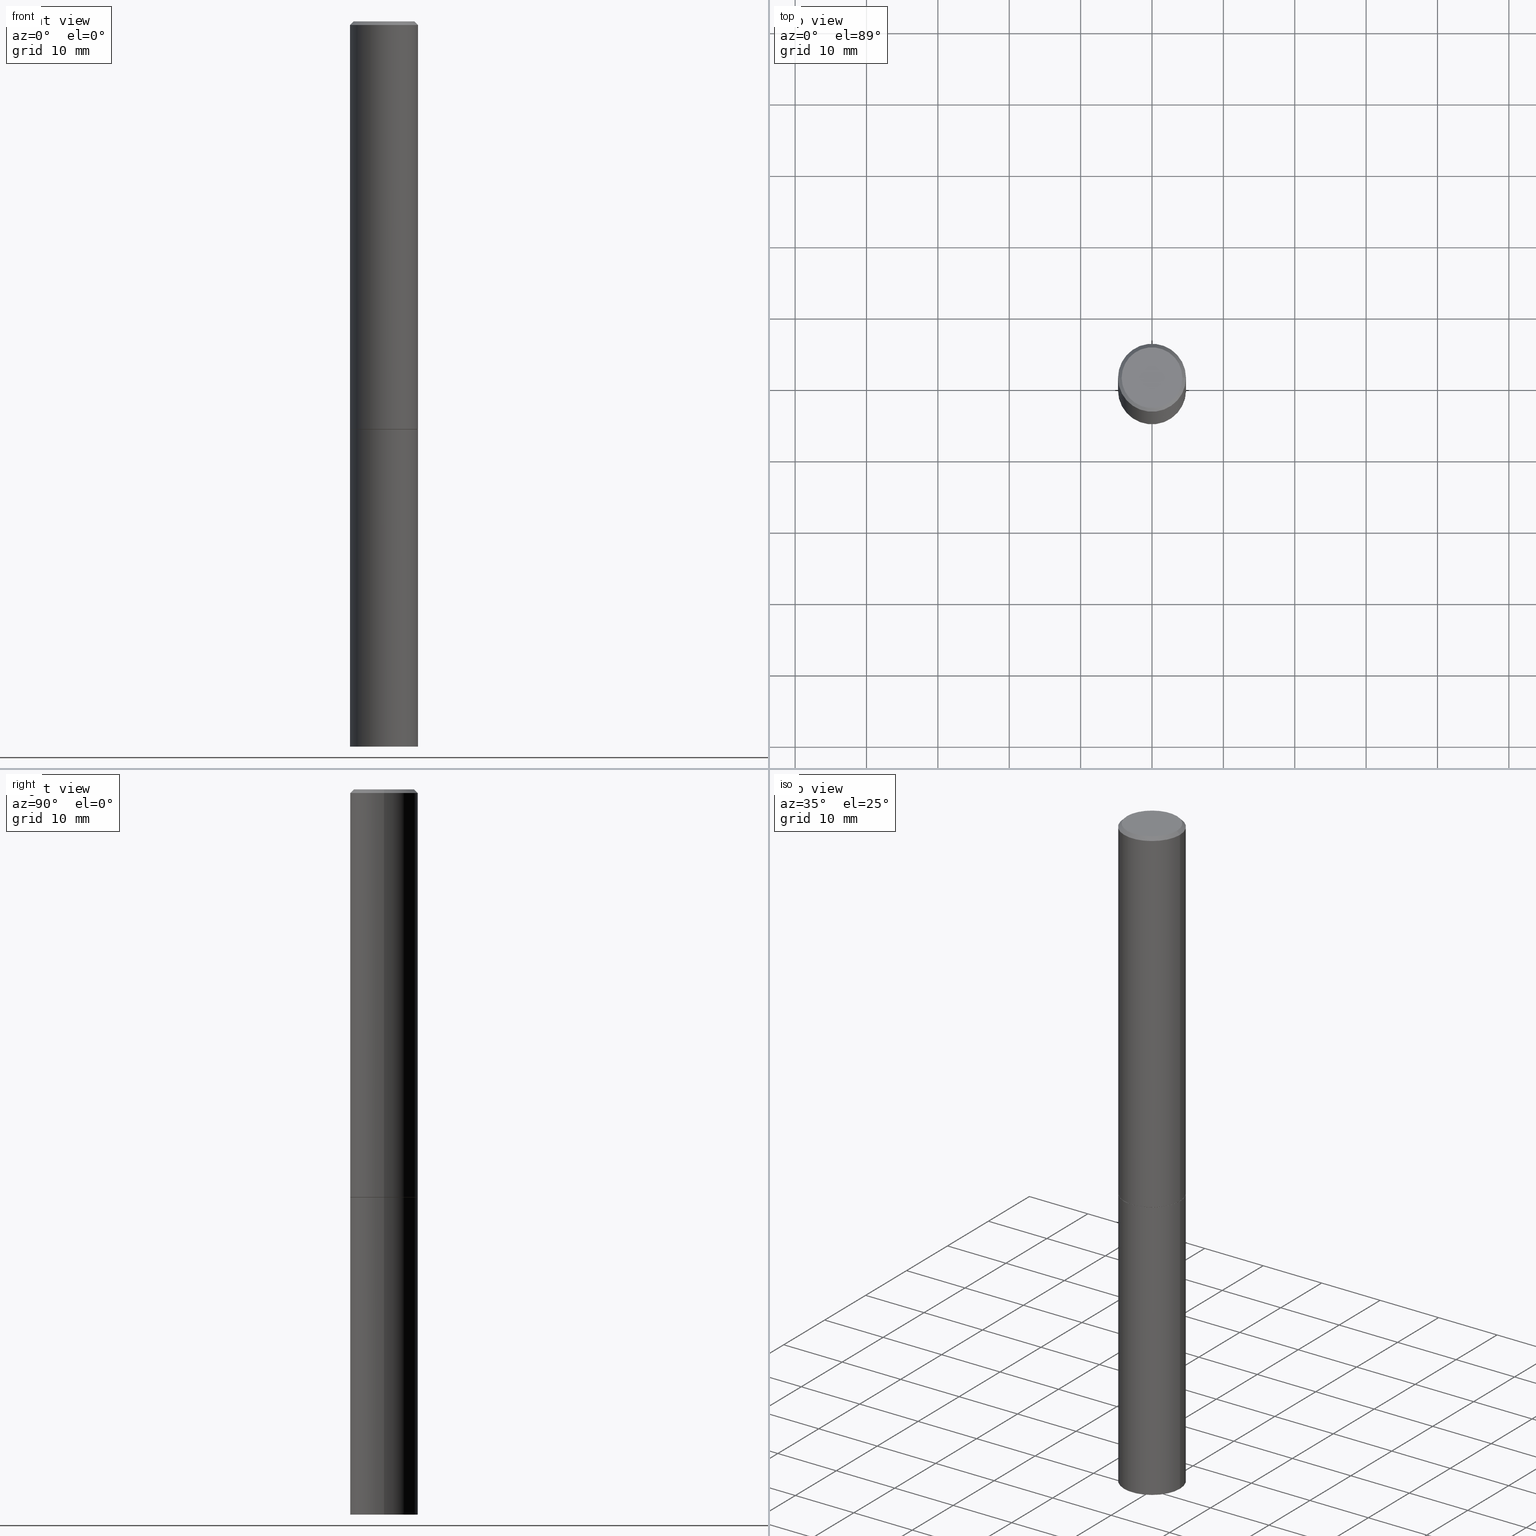
[diagram: canonical four-view strip — front | top / right | iso, engineering-drawing reading convention]
A machine part, canonical four-view strip (front | top / right | iso — engineering-drawing reading convention). The complete STEP part file that produces these views, byte-faithful:
ISO-10303-21;
HEADER;
FILE_DESCRIPTION (( 'STEP AP203' ),
    '1' );
FILE_NAME ('33127.STEP',
    '2023-03-21T20:39:41',
    ( '' ),
    ( '' ),
    'SwSTEP 2.0',
    'SolidWorks 2022',
    '' );
FILE_SCHEMA (( 'CONFIG_CONTROL_DESIGN' ));
ENDSEC;

DATA;
#1 = ORIENTED_EDGE ( 'NONE', *, *, #310, .F. ) ;
#2 = CARTESIAN_POINT ( 'NONE',  ( 0.1874999999999996947, -1.356173001359023297E-15, -0.02000000000000004552 ) ) ;
#3 = CYLINDRICAL_SURFACE ( 'NONE', #281, 0.1875000000000000278 ) ;
#4 = PRODUCT_DEFINITION ( 'UNKNOWN', '', #288, #286 ) ;
#5 = CARTESIAN_POINT ( 'NONE',  ( 9.756784211881482011E-29, -1.393313546251159810E-14, -3.990173541384430589 ) ) ;
#6 = APPROVAL_ROLE ( '' ) ;
#7 = CC_DESIGN_SECURITY_CLASSIFICATION ( #105, ( #288 ) ) ;
#8 = DIRECTION ( 'NONE',  ( -2.445468806185136597E-29, 3.491481338843145583E-15, 1.000000000000000000 ) ) ;
#9 = EDGE_CURVE ( 'NONE', #234, #339, #307, .T. ) ;
#10 = DIRECTION ( 'NONE',  ( -2.445468806185136597E-29, 3.491481338843145583E-15, 1.000000000000000000 ) ) ;
#11 = DIRECTION ( 'NONE',  ( -2.445468806185136597E-29, 3.491481338843145583E-15, 1.000000000000000000 ) ) ;
#12 = CALENDAR_DATE ( 2023, 21, 3 ) ;
#13 = PERSON_AND_ORGANIZATION_ROLE ( 'classification_officer' ) ;
#14 = APPROVAL_DATE_TIME ( #158, #206 ) ;
#15 = CC_DESIGN_PERSON_AND_ORGANIZATION_ASSIGNMENT ( #126, #96, ( #124 ) ) ;
#16 = EDGE_LOOP ( 'NONE', ( #106, #85, #162 ) ) ;
#17 = CONICAL_SURFACE ( 'NONE', #231, 751.2258538476485228, 1.518436449235072372 ) ;
#18 = ORIENTED_EDGE ( 'NONE', *, *, #337, .T. ) ;
#19 = ORIENTED_EDGE ( 'NONE', *, *, #65, .T. ) ;
#20 = ORIENTED_EDGE ( 'NONE', *, *, #265, .T. ) ;
#21 = VECTOR ( 'NONE', #212, 39.37007874015748143 ) ;
#22 = LENGTH_MEASURE_WITH_UNIT ( LENGTH_MEASURE( 0.02539999999999999897 ), #289 );
#23 = ORIENTED_EDGE ( 'NONE', *, *, #376, .F. ) ;
#24 = DIRECTION ( 'NONE',  ( -0.7071067811864388819, 7.493145998869961307E-15, 0.7071067811866561525 ) ) ;
#25 = DIRECTION ( 'NONE',  ( -2.445468806185136597E-29, 3.491481338843145583E-15, 1.000000000000000000 ) ) ;
#26 = EDGE_CURVE ( 'NONE', #339, #234, #36, .T. ) ;
#27 = CARTESIAN_POINT ( 'NONE',  ( 0.1874999999999998335, -1.309305502066173825E-15, 9.142831454617371204E-30 ) ) ;
#28 = AXIS2_PLACEMENT_3D ( 'NONE', #298, #319, #111 ) ;
#29 = ORIENTED_EDGE ( 'NONE', *, *, #279, .T. ) ;
#30 = DIRECTION ( 'NONE',  ( 1.000000000000000000, -6.982962677686265922E-15, 4.876176775795935793E-29 ) ) ;
#31 = CARTESIAN_POINT ( 'NONE',  ( 5.502304813916557343E-29, -7.855833012397078448E-15, -2.250000000000000000 ) ) ;
#32 = PLANE ( 'NONE',  #185 ) ;
#33 = DIRECTION ( 'NONE',  ( 1.000000000000000000, -6.982962677686266711E-15, 4.876176775795936353E-29 ) ) ;
#34 = PLANE ( 'NONE',  #72 ) ;
#35 = PERSON_AND_ORGANIZATION ( #365, #60 ) ;
#36 = CIRCLE ( 'NONE', #301, 0.1875000000000000278 ) ;
#37 = AXIS2_PLACEMENT_3D ( 'NONE', #299, #99, #33 ) ;
#38 = DIRECTION ( 'NONE',  ( -0.9986295347545742773, 6.790662755453662155E-15, -0.05233595624293820026 ) ) ;
#39 = CARTESIAN_POINT ( 'NONE',  ( -0.1864999999999999714, -6.525372355856269206E-15, -2.250000000000000444 ) ) ;
#40 = SECURITY_CLASSIFICATION_LEVEL ( 'unclassified' ) ;
#41 = CALENDAR_DATE ( 2023, 21, 3 ) ;
#42 = AXIS2_PLACEMENT_3D ( 'NONE', #243, #223, #332 ) ;
#43 = DATE_TIME_ROLE ( 'creation_date' ) ;
#44 = CARTESIAN_POINT ( 'NONE',  ( 9.781875224740546387E-29, -1.396592535537258233E-14, -4.000000000000000000 ) ) ;
#45 = CIRCLE ( 'NONE', #256, 0.1674999999999997047 ) ;
#46 = AXIS2_PLACEMENT_3D ( 'NONE', #64, #361, #250 ) ;
#47 = VERTEX_POINT ( 'NONE', #144 ) ;
#48 = EDGE_CURVE ( 'NONE', #139, #322, #113, .T. ) ;
#49 = LINE ( 'NONE', #172, #225 ) ;
#50 = DIRECTION ( 'NONE',  ( 1.000000000000000000, -6.982962677686265922E-15, 4.876176775795935793E-29 ) ) ;
#51 = VECTOR ( 'NONE', #267, 39.37007874015748143 ) ;
#52 = VERTEX_POINT ( 'NONE', #357 ) ;
#53 = CARTESIAN_POINT ( 'NONE',  ( -0.1864999999999999714, -6.530670810204491608E-15, -2.250000000000000444 ) ) ;
#54 = EDGE_CURVE ( 'NONE', #166, #169, #326, .T. ) ;
#55 = DIRECTION ( 'NONE',  ( -2.445468806185136597E-29, 3.491481338843145583E-15, 1.000000000000000000 ) ) ;
#56 = FACE_OUTER_BOUND ( 'NONE', #141, .T. ) ;
#57 = ORIENTED_EDGE ( 'NONE', *, *, #389, .F. ) ;
#58 = UNCERTAINTY_MEASURE_WITH_UNIT (LENGTH_MEASURE( 1.000000000000000082E-05 ), #238, 'distance_accuracy_value', 'NONE');
#59 = LINE ( 'NONE', #27, #21 ) ;
#60 = ORGANIZATION ( 'UNSPECIFIED', 'UNSPECIFIED', '' ) ;
#61 = DIRECTION ( 'NONE',  ( -2.445468806185136597E-29, 3.491481338843145583E-15, 1.000000000000000000 ) ) ;
#62 = EDGE_CURVE ( 'NONE', #374, #322, #68, .T. ) ;
#63 = DIRECTION ( 'NONE',  ( -2.445468806185136877E-29, 3.491481338843145188E-15, 1.000000000000000000 ) ) ;
#64 = CARTESIAN_POINT ( 'NONE',  ( 4.890937612370284544E-31, -6.982962677686307633E-17, -0.02000000000000004552 ) ) ;
#65 = EDGE_CURVE ( 'NONE', #170, #47, #165, .T. ) ;
#66 = CARTESIAN_POINT ( 'NONE',  ( 1.169646248512447623E-15, 0.1674999999999997047, -5.848231242562258822E-16 ) ) ;
#67 = CALENDAR_DATE ( 2023, 21, 3 ) ;
#68 = LINE ( 'NONE', #230, #334 ) ;
#69 = CARTESIAN_POINT ( 'NONE',  ( 0.000000000000000000, 0.000000000000000000, 0.000000000000000000 ) ) ;
#70 = PERSON_AND_ORGANIZATION ( #365, #60 ) ;
#71 = AXIS2_PLACEMENT_3D ( 'NONE', #325, #61, #94 ) ;
#72 = AXIS2_PLACEMENT_3D ( 'NONE', #66, #189, #300 ) ;
#73 = CARTESIAN_POINT ( 'NONE',  ( 0.1864999999999999714, -9.158155551785567442E-15, -2.250000000000000444 ) ) ;
#74 = APPROVAL_STATUS ( 'not_yet_approved' ) ;
#75 = DATE_TIME_ROLE ( 'classification_date' ) ;
#76 = EDGE_CURVE ( 'NONE', #166, #317, #49, .T. ) ;
#77 = ORIENTED_EDGE ( 'NONE', *, *, #310, .T. ) ;
#78 = AXIS2_PLACEMENT_3D ( 'NONE', #204, #148, #268 ) ;
#79 = EDGE_LOOP ( 'NONE', ( #341, #210 ) ) ;
#80 = ORIENTED_EDGE ( 'NONE', *, *, #62, .T. ) ;
#81 = EDGE_CURVE ( 'NONE', #201, #374, #45, .T. ) ;
#82 = ORIENTED_EDGE ( 'NONE', *, *, #380, .F. ) ;
#83 = DIRECTION ( 'NONE',  ( -2.445468806185136597E-29, 3.491481338843145583E-15, 1.000000000000000000 ) ) ;
#84 = ORIENTED_EDGE ( 'NONE', *, *, #101, .F. ) ;
#85 = ORIENTED_EDGE ( 'NONE', *, *, #174, .T. ) ;
#86 = CARTESIAN_POINT ( 'NONE',  ( 5.502304813916558464E-29, -7.855833012397078448E-15, -2.250000000000000444 ) ) ;
#87 = CIRCLE ( 'NONE', #302, 0.1875000000000000278 ) ;
#88 = EDGE_LOOP ( 'NONE', ( #348, #77, #164, #207 ) ) ;
#89 = LINE ( 'NONE', #53, #131 ) ;
#90 = CARTESIAN_POINT ( 'NONE',  ( -0.1875000000000000278, -9.578611554334641752E-15, -2.250000000000000000 ) ) ;
#91 = DIRECTION ( 'NONE',  ( -2.445468806185136597E-29, 3.491481338843145583E-15, 1.000000000000000000 ) ) ;
#92 = CARTESIAN_POINT ( 'NONE',  ( -1.519004022092693237E-18, -1.393161645848940829E-14, -3.990173541384430589 ) ) ;
#93 = ADVANCED_FACE ( 'NONE', ( #293 ), #146, .T. ) ;
#94 = DIRECTION ( 'NONE',  ( 1.000000000000000000, -6.982962677686269077E-15, 0.000000000000000000 ) ) ;
#95 = DIRECTION ( 'NONE',  ( -1.000000000000000000, 6.982962677686266711E-15, 0.000000000000000000 ) ) ;
#96 = PERSON_AND_ORGANIZATION_ROLE ( 'design_owner' ) ;
#97 = FACE_OUTER_BOUND ( 'NONE', #186, .T. ) ;
#98 = DATE_AND_TIME ( #132, #108 ) ;
#99 = DIRECTION ( 'NONE',  ( -2.445468806185136597E-29, 3.491481338843145583E-15, 1.000000000000000000 ) ) ;
#100 = APPROVAL_STATUS ( 'not_yet_approved' ) ;
#101 = EDGE_CURVE ( 'NONE', #169, #166, #311, .T. ) ;
#102 = COORDINATED_UNIVERSAL_TIME_OFFSET ( 5, 0, .BEHIND. ) ;
#103 = PRODUCT_RELATED_PRODUCT_CATEGORY ( 'detail', '', ( #124 ) ) ;
#104 = ORIENTED_EDGE ( 'NONE', *, *, #150, .T. ) ;
#105 = SECURITY_CLASSIFICATION ( '', '', #40 ) ;
#106 = ORIENTED_EDGE ( 'NONE', *, *, #150, .F. ) ;
#107 = ORIENTED_EDGE ( 'NONE', *, *, #62, .F. ) ;
#108 = LOCAL_TIME ( 16, 39, 41.00000000000000000, #102 ) ;
#109 = DIRECTION ( 'NONE',  ( 0.7071067811864388819, -2.468850131081119129E-15, 0.7071067811866561525 ) ) ;
#110 = ORIENTED_EDGE ( 'NONE', *, *, #138, .T. ) ;
#111 = DIRECTION ( 'NONE',  ( 1.000000000000000000, -6.982962677686261189E-15, 0.000000000000000000 ) ) ;
#112 = AXIS2_PLACEMENT_3D ( 'NONE', #86, #381, #50 ) ;
#113 = LINE ( 'NONE', #269, #130 ) ;
#114 = CARTESIAN_POINT ( 'NONE',  ( 0.000000000000000000, 0.000000000000000000, 0.000000000000000000 ) ) ;
#115 = ORIENTED_EDGE ( 'NONE', *, *, #198, .F. ) ;
#116 = CYLINDRICAL_SURFACE ( 'NONE', #137, 0.1875000000000000278 ) ;
#117 = CARTESIAN_POINT ( 'NONE',  ( 0.000000000000000000, 0.000000000000000000, 0.000000000000000000 ) ) ;
#118 = FACE_OUTER_BOUND ( 'NONE', #375, .T. ) ;
#119 = APPROVAL_PERSON_ORGANIZATION ( #161, #252, #362 ) ;
#120 = COORDINATED_UNIVERSAL_TIME_OFFSET ( 5, 0, .BEHIND. ) ;
#121 = DIRECTION ( 'NONE',  ( 0.9986295347545742773, -7.033825938272001856E-15, -0.05233595624293820026 ) ) ;
#122 = PERSON_AND_ORGANIZATION_ROLE ( 'creator' ) ;
#123 = CC_DESIGN_DATE_AND_TIME_ASSIGNMENT ( #98, #75, ( #105 ) ) ;
#124 = PRODUCT ( '33127', '33127', '', ( #199 ) ) ;
#125 = DIRECTION ( 'NONE',  ( 1.000000000000000000, -6.982962677686266711E-15, 0.000000000000000000 ) ) ;
#126 = PERSON_AND_ORGANIZATION ( #365, #60 ) ;
#127 = APPLICATION_CONTEXT ( 'configuration controlled 3d designs of mechanical parts and assemblies' ) ;
#128 = CARTESIAN_POINT ( 'NONE',  ( 0.1674999999999997047, -1.252653207992876316E-15, 8.469775550109225372E-30 ) ) ;
#129 = PERSON_AND_ORGANIZATION ( #365, #60 ) ;
#130 = VECTOR ( 'NONE', #241, 39.37007874015748143 ) ;
#131 = VECTOR ( 'NONE', #24, 39.37007874015748143 ) ;
#132 = CALENDAR_DATE ( 2023, 21, 3 ) ;
#133 = ADVANCED_FACE ( 'NONE', ( #153 ), #274, .T. ) ;
#134 = ORIENTED_EDGE ( 'NONE', *, *, #279, .F. ) ;
#135 = EDGE_LOOP ( 'NONE', ( #82, #291, #346, #216 ) ) ;
#136 = ORIENTED_EDGE ( 'NONE', *, *, #211, .T. ) ;
#137 = AXIS2_PLACEMENT_3D ( 'NONE', #117, #184, #242 ) ;
#138 = EDGE_CURVE ( 'NONE', #317, #139, #159, .T. ) ;
#139 = VERTEX_POINT ( 'NONE', #192 ) ;
#140 = CARTESIAN_POINT ( 'NONE',  ( 5.502304813916558464E-29, -7.855833012397078448E-15, -2.250000000000000444 ) ) ;
#141 = EDGE_LOOP ( 'NONE', ( #134, #254, #80, #20 ) ) ;
#142 = CARTESIAN_POINT ( 'NONE',  ( -0.1874999999999996947, 1.239475875289309738E-15, -0.02000000000000004552 ) ) ;
#143 = DIRECTION ( 'NONE',  ( 1.000000000000000000, -6.982962677686269077E-15, 0.000000000000000000 ) ) ;
#144 = CARTESIAN_POINT ( 'NONE',  ( -0.1874999999999996947, -1.265661985330641048E-14, -4.000000000000000000 ) ) ;
#145 = CARTESIAN_POINT ( 'NONE',  ( 0.1875000000000000278, -9.161647033124408872E-15, -2.249000000000000110 ) ) ;
#146 = CONICAL_SURFACE ( 'NONE', #368, 0.1864999999999999714, 0.7853981633972946241 ) ;
#147 = VECTOR ( 'NONE', #121, 39.37007874015748854 ) ;
#148 = DIRECTION ( 'NONE',  ( 0.000000000000000000, 0.000000000000000000, 1.000000000000000000 ) ) ;
#149 = EDGE_LOOP ( 'NONE', ( #1, #355, #257, #213 ) ) ;
#150 = EDGE_CURVE ( 'NONE', #237, #170, #370, .T. ) ;
#151 = DIRECTION ( 'NONE',  ( 2.438088387897960049E-29, -3.491481338843145188E-15, -1.000000000000000000 ) ) ;
#152 = DIRECTION ( 'NONE',  ( 1.000000000000000000, -6.982962677686261189E-15, 0.000000000000000000 ) ) ;
#153 = FACE_OUTER_BOUND ( 'NONE', #350, .T. ) ;
#154 = CC_DESIGN_PERSON_AND_ORGANIZATION_ASSIGNMENT ( #277, #367, ( #288 ) ) ;
#155 = CARTESIAN_POINT ( 'NONE',  ( 4.890937612370284544E-31, -6.982962677686307633E-17, -0.02000000000000004552 ) ) ;
#156 = FACE_OUTER_BOUND ( 'NONE', #264, .T. ) ;
#157 = CARTESIAN_POINT ( 'NONE',  ( 1.519004022287850030E-18, -1.393161645848940829E-14, -3.990173541384430589 ) ) ;
#158 = DATE_AND_TIME ( #41, #340 ) ;
#159 = CIRCLE ( 'NONE', #42, 0.1875000000000000278 ) ;
#160 = AXIS2_PLACEMENT_3D ( 'NONE', #155, #91, #390 ) ;
#161 = PERSON_AND_ORGANIZATION ( #365, #60 ) ;
#162 = ORIENTED_EDGE ( 'NONE', *, *, #65, .F. ) ;
#163 = ADVANCED_BREP_SHAPE_REPRESENTATION ( '33127', ( #306, #168, #78 ), #200 ) ;
#164 = ORIENTED_EDGE ( 'NONE', *, *, #138, .F. ) ;
#165 = CIRCLE ( 'NONE', #385, 0.1875000000000000278 ) ;
#166 = VERTEX_POINT ( 'NONE', #73 ) ;
#167 = AXIS2_PLACEMENT_3D ( 'NONE', #278, #11, #220 ) ;
#168 = MANIFOLD_SOLID_BREP ( 'Body-Move/Copy2[2]', #280 ) ;
#169 = VERTEX_POINT ( 'NONE', #39 ) ;
#170 = VERTEX_POINT ( 'NONE', #303 ) ;
#171 = DIMENSIONAL_EXPONENTS ( 1.000000000000000000, 0.000000000000000000, 0.000000000000000000, 0.000000000000000000, 0.000000000000000000, 0.000000000000000000, 0.000000000000000000 ) ;
#172 = CARTESIAN_POINT ( 'NONE',  ( 0.1864999999999999714, -9.158155551785567442E-15, -2.250000000000000444 ) ) ;
#173 = ORIENTED_EDGE ( 'NONE', *, *, #347, .T. ) ;
#174 = EDGE_CURVE ( 'NONE', #237, #47, #359, .T. ) ;
#175 = CONICAL_SURFACE ( 'NONE', #351, 751.2258538476485228, 1.518436449235072372 ) ;
#176 = LINE ( 'NONE', #384, #386 ) ;
#177 = DIRECTION ( 'NONE',  ( 1.000000000000000000, -6.982962677686266711E-15, 4.876176775795936353E-29 ) ) ;
#178 = ORIENTED_EDGE ( 'NONE', *, *, #54, .F. ) ;
#179 = DIRECTION ( 'NONE',  ( -2.445468806185136877E-29, 3.491481338843145188E-15, 1.000000000000000000 ) ) ;
#180 = DIRECTION ( 'NONE',  ( 1.000000000000000000, -6.982962677686266711E-15, 0.000000000000000000 ) ) ;
#181 = PLANE ( 'NONE',  #112 ) ;
#182 = ADVANCED_FACE ( 'NONE', ( #97 ), #308, .T. ) ;
#183 = ORIENTED_EDGE ( 'NONE', *, *, #198, .T. ) ;
#184 = DIRECTION ( 'NONE',  ( -2.445468806185136597E-29, 3.491481338843145583E-15, 1.000000000000000000 ) ) ;
#185 = AXIS2_PLACEMENT_3D ( 'NONE', #358, #151, #214 ) ;
#186 = EDGE_LOOP ( 'NONE', ( #343, #29, #183, #107 ) ) ;
#187 = FACE_OUTER_BOUND ( 'NONE', #16, .T. ) ;
#188 = CC_DESIGN_PERSON_AND_ORGANIZATION_ASSIGNMENT ( #129, #13, ( #105 ) ) ;
#189 = DIRECTION ( 'NONE',  ( 2.438088387897960049E-29, -3.491481338843145188E-15, -1.000000000000000000 ) ) ;
#190 = PERSON_AND_ORGANIZATION ( #365, #60 ) ;
#191 = ADVANCED_FACE ( 'NONE', ( #363 ), #245, .T. ) ;
#192 = CARTESIAN_POINT ( 'NONE',  ( -0.1875000000000000278, -2.628817949367357182E-15, -2.249000000000000110 ) ) ;
#193 = APPROVAL_PERSON_ORGANIZATION ( #35, #206, #6 ) ;
#194 = DATE_AND_TIME ( #67, #226 ) ;
#195 = CARTESIAN_POINT ( 'NONE',  ( 1.060361443828286535E-27, -1.513915116885344951E-13, -43.36025228154191069 ) ) ;
#196 = APPROVAL_DATE_TIME ( #224, #314 ) ;
#197 = ADVANCED_FACE ( 'NONE', ( #156 ), #175, .F. ) ;
#198 = EDGE_CURVE ( 'NONE', #52, #322, #205, .T. ) ;
#199 = MECHANICAL_CONTEXT ( 'NONE', #208, 'mechanical' ) ;
#200 =( GEOMETRIC_REPRESENTATION_CONTEXT ( 3 ) GLOBAL_UNCERTAINTY_ASSIGNED_CONTEXT ( ( #58 ) ) GLOBAL_UNIT_ASSIGNED_CONTEXT ( ( #238, #354, #320 ) ) REPRESENTATION_CONTEXT ( 'NONE', 'WORKASPACE' ) );
#201 = VERTEX_POINT ( 'NONE', #128 ) ;
#202 = DIRECTION ( 'NONE',  ( -0.7071067811865465735, 2.468850131082246805E-15, -0.7071067811865484609 ) ) ;
#203 = ADVANCED_FACE ( 'NONE', ( #187 ), #17, .F. ) ;
#204 = CARTESIAN_POINT ( 'NONE',  ( 0.000000000000000000, 0.000000000000000000, 0.000000000000000000 ) ) ;
#205 = CIRCLE ( 'NONE', #296, 0.1874999999999996947 ) ;
#206 = APPROVAL ( #251, 'UNSPECIFIED' ) ;
#207 = ORIENTED_EDGE ( 'NONE', *, *, #76, .F. ) ;
#208 = APPLICATION_CONTEXT ( 'configuration controlled 3d designs of mechanical parts and assemblies' ) ;
#209 = DIRECTION ( 'NONE',  ( 1.000000000000000000, -6.982962677686261189E-15, 0.000000000000000000 ) ) ;
#210 = ORIENTED_EDGE ( 'NONE', *, *, #26, .T. ) ;
#211 = EDGE_CURVE ( 'NONE', #374, #201, #353, .T. ) ;
#212 = DIRECTION ( 'NONE',  ( -2.445468806185136877E-29, 3.491481338843145188E-15, 1.000000000000000000 ) ) ;
#213 = ORIENTED_EDGE ( 'NONE', *, *, #347, .F. ) ;
#214 = DIRECTION ( 'NONE',  ( -1.000000000000000000, 6.982962677686265922E-15, -4.876176775795935793E-29 ) ) ;
#215 = LINE ( 'NONE', #2, #51 ) ;
#216 = ORIENTED_EDGE ( 'NONE', *, *, #26, .F. ) ;
#217 = DIRECTION ( 'NONE',  ( -2.445468806185136597E-29, 3.491481338843145583E-15, 1.000000000000000000 ) ) ;
#218 = AXIS2_PLACEMENT_3D ( 'NONE', #31, #55, #262 ) ;
#219 = AXIS2_PLACEMENT_3D ( 'NONE', #356, #260, #297 ) ;
#220 = DIRECTION ( 'NONE',  ( 1.000000000000000000, -6.982962677686266711E-15, 4.876176775795935793E-29 ) ) ;
#221 = DIRECTION ( 'NONE',  ( 1.000000000000000000, -6.982962677686266711E-15, 4.876176775795935793E-29 ) ) ;
#222 = COORDINATED_UNIVERSAL_TIME_OFFSET ( 5, 0, .BEHIND. ) ;
#223 = DIRECTION ( 'NONE',  ( -2.445468806185136597E-29, 3.491481338843145583E-15, 1.000000000000000000 ) ) ;
#224 = DATE_AND_TIME ( #275, #336 ) ;
#225 = VECTOR ( 'NONE', #109, 39.37007874015748143 ) ;
#226 = LOCAL_TIME ( 16, 39, 41.00000000000000000, #333 ) ;
#227 = FACE_OUTER_BOUND ( 'NONE', #88, .T. ) ;
#228 = PERSON_AND_ORGANIZATION_ROLE ( 'design_supplier' ) ;
#229 = ADVANCED_FACE ( 'NONE', ( #227 ), #253, .T. ) ;
#230 = CARTESIAN_POINT ( 'NONE',  ( -0.1874999999999996947, 1.239475875289309738E-15, -0.02000000000000004552 ) ) ;
#231 = AXIS2_PLACEMENT_3D ( 'NONE', #248, #366, #95 ) ;
#232 = CC_DESIGN_DATE_AND_TIME_ASSIGNMENT ( #305, #43, ( #4 ) ) ;
#233 = EDGE_LOOP ( 'NONE', ( #110, #287, #115, #342 ) ) ;
#234 = VERTEX_POINT ( 'NONE', #246 ) ;
#235 = ORIENTED_EDGE ( 'NONE', *, *, #380, .T. ) ;
#236 = ORIENTED_EDGE ( 'NONE', *, *, #48, .F. ) ;
#237 = VERTEX_POINT ( 'NONE', #5 ) ;
#238 =( CONVERSION_BASED_UNIT ( 'INCH', #22 ) LENGTH_UNIT ( ) NAMED_UNIT ( #171 ) );
#239 = DIRECTION ( 'NONE',  ( 1.000000000000000000, -6.982962677686269077E-15, 0.000000000000000000 ) ) ;
#240 = LINE ( 'NONE', #323, #312 ) ;
#241 = DIRECTION ( 'NONE',  ( -2.445468806185136877E-29, 3.491481338843145188E-15, 1.000000000000000000 ) ) ;
#242 = DIRECTION ( 'NONE',  ( 1.000000000000000000, -6.982962677686265922E-15, 4.876176775795935793E-29 ) ) ;
#243 = CARTESIAN_POINT ( 'NONE',  ( 5.499859345110371740E-29, -7.852341531058233864E-15, -2.249000000000000110 ) ) ;
#244 = CC_DESIGN_APPROVAL ( #314, ( #4 ) ) ;
#245 = CYLINDRICAL_SURFACE ( 'NONE', #167, 0.1874999999999998335 ) ;
#246 = CARTESIAN_POINT ( 'NONE',  ( 0.1875000000000000278, -9.165138514463253457E-15, -2.250000000000000000 ) ) ;
#247 = COORDINATED_UNIVERSAL_TIME_OFFSET ( 5, 0, .BEHIND. ) ;
#248 = CARTESIAN_POINT ( 'NONE',  ( 1.060361443828286535E-27, -1.513915116885344951E-13, -43.36025228154191069 ) ) ;
#249 = APPROVAL_DATE_TIME ( #194, #252 ) ;
#250 = DIRECTION ( 'NONE',  ( -1.000000000000000000, 6.982962677686266711E-15, 0.000000000000000000 ) ) ;
#251 = APPROVAL_STATUS ( 'not_yet_approved' ) ;
#252 = APPROVAL ( #100, 'UNSPECIFIED' ) ;
#253 = CONICAL_SURFACE ( 'NONE', #266, 0.1864999999999999714, 0.7853981633972946241 ) ;
#254 = ORIENTED_EDGE ( 'NONE', *, *, #211, .F. ) ;
#255 = ORIENTED_EDGE ( 'NONE', *, *, #174, .F. ) ;
#256 = AXIS2_PLACEMENT_3D ( 'NONE', #349, #316, #177 ) ;
#257 = ORIENTED_EDGE ( 'NONE', *, *, #76, .T. ) ;
#258 = CIRCLE ( 'NONE', #160, 0.1874999999999996947 ) ;
#259 = EDGE_LOOP ( 'NONE', ( #19, #235, #379, #23 ) ) ;
#260 = DIRECTION ( 'NONE',  ( 2.445468806185136597E-29, -3.491481338843145583E-15, -1.000000000000000000 ) ) ;
#261 = ADVANCED_FACE ( 'NONE', ( #118 ), #34, .F. ) ;
#262 = DIRECTION ( 'NONE',  ( 1.000000000000000000, -6.982962677686266711E-15, 0.000000000000000000 ) ) ;
#263 = CARTESIAN_POINT ( 'NONE',  ( -0.1674999999999997047, 1.204561061900878878E-15, -8.301862719484099178E-30 ) ) ;
#264 = EDGE_LOOP ( 'NONE', ( #255, #104, #57 ) ) ;
#265 = EDGE_CURVE ( 'NONE', #322, #52, #258, .T. ) ;
#266 = AXIS2_PLACEMENT_3D ( 'NONE', #330, #338, #272 ) ;
#267 = DIRECTION ( 'NONE',  ( 0.7071067811865465735, -7.319954787623252890E-15, -0.7071067811865484609 ) ) ;
#268 = DIRECTION ( 'NONE',  ( 1.000000000000000000, 0.000000000000000000, 0.000000000000000000 ) ) ;
#269 = CARTESIAN_POINT ( 'NONE',  ( -0.1874999999999998335, 1.332267629550186665E-15, -9.223003294227939583E-30 ) ) ;
#270 = ADVANCED_FACE ( 'NONE', ( #56 ), #378, .T. ) ;
#271 = FACE_OUTER_BOUND ( 'NONE', #135, .T. ) ;
#272 = DIRECTION ( 'NONE',  ( 1.000000000000000000, -6.982962677686269077E-15, 0.000000000000000000 ) ) ;
#273 = LOCAL_TIME ( 16, 39, 41.00000000000000000, #247 ) ;
#274 = CYLINDRICAL_SURFACE ( 'NONE', #377, 0.1874999999999998335 ) ;
#275 = CALENDAR_DATE ( 2023, 21, 3 ) ;
#276 = CARTESIAN_POINT ( 'NONE',  ( 4.890937612370284544E-31, -6.982962677686307633E-17, -0.02000000000000004552 ) ) ;
#277 = PERSON_AND_ORGANIZATION ( #365, #60 ) ;
#278 = CARTESIAN_POINT ( 'NONE',  ( 0.000000000000000000, 0.000000000000000000, 0.000000000000000000 ) ) ;
#279 = EDGE_CURVE ( 'NONE', #201, #52, #215, .T. ) ;
#280 = CLOSED_SHELL ( 'NONE', ( #229, #191, #182, #270, #133, #93, #318, #261 ) ) ;
#281 = AXIS2_PLACEMENT_3D ( 'NONE', #114, #328, #30 ) ;
#282 = PERSON_AND_ORGANIZATION ( #365, #60 ) ;
#283 = CLOSED_SHELL ( 'NONE', ( #331, #197, #203, #344, #388 ) ) ;
#284 = SHAPE_DEFINITION_REPRESENTATION ( #335, #163 ) ;
#285 = APPROVAL_PERSON_ORGANIZATION ( #70, #314, #364 ) ;
#286 = DESIGN_CONTEXT ( 'detailed design', #127, 'design' ) ;
#287 = ORIENTED_EDGE ( 'NONE', *, *, #48, .T. ) ;
#288 = PRODUCT_DEFINITION_FORMATION_WITH_SPECIFIED_SOURCE ( 'ANY', '', #124, .NOT_KNOWN. ) ;
#289 =( LENGTH_UNIT ( ) NAMED_UNIT ( * ) SI_UNIT ( $, .METRE. ) );
#290 = CARTESIAN_POINT ( 'NONE',  ( 5.502304813916558464E-29, -7.855833012397078448E-15, -2.250000000000000444 ) ) ;
#291 = ORIENTED_EDGE ( 'NONE', *, *, #389, .T. ) ;
#292 = CARTESIAN_POINT ( 'NONE',  ( 9.781875224740546387E-29, -1.396592535537258233E-14, -4.000000000000000000 ) ) ;
#293 = FACE_OUTER_BOUND ( 'NONE', #149, .T. ) ;
#294 = FACE_OUTER_BOUND ( 'NONE', #259, .T. ) ;
#295 = AXIS2_PLACEMENT_3D ( 'NONE', #140, #25, #143 ) ;
#296 = AXIS2_PLACEMENT_3D ( 'NONE', #276, #10, #125 ) ;
#297 = DIRECTION ( 'NONE',  ( -1.000000000000000000, 6.982962677686266711E-15, 0.000000000000000000 ) ) ;
#298 = CARTESIAN_POINT ( 'NONE',  ( 5.499859345110371740E-29, -7.852341531058233864E-15, -2.249000000000000110 ) ) ;
#299 = CARTESIAN_POINT ( 'NONE',  ( 0.000000000000000000, 0.000000000000000000, 0.000000000000000000 ) ) ;
#300 = DIRECTION ( 'NONE',  ( -1.000000000000000000, 6.982962677686265922E-15, -4.876176775795935793E-29 ) ) ;
#301 = AXIS2_PLACEMENT_3D ( 'NONE', #387, #382, #180 ) ;
#302 = AXIS2_PLACEMENT_3D ( 'NONE', #292, #217, #152 ) ;
#303 = CARTESIAN_POINT ( 'NONE',  ( 0.1874999999999996947, -1.525226872995474292E-14, -4.000000000000000000 ) ) ;
#304 = DIRECTION ( 'NONE',  ( 2.445468806185136597E-29, -3.491481338843145583E-15, -1.000000000000000000 ) ) ;
#305 = DATE_AND_TIME ( #12, #273 ) ;
#306 = MANIFOLD_SOLID_BREP ( 'Body-Move/Copy2[1]', #283 ) ;
#307 = CIRCLE ( 'NONE', #218, 0.1875000000000000278 ) ;
#308 = CONICAL_SURFACE ( 'NONE', #46, 0.1874999999999996947, 0.7853981633974469467 ) ;
#309 = APPLICATION_PROTOCOL_DEFINITION ( 'international standard', 'config_control_design', 1994, #127 ) ;
#310 = EDGE_CURVE ( 'NONE', #169, #139, #89, .T. ) ;
#311 = CIRCLE ( 'NONE', #295, 0.1864999999999999714 ) ;
#312 = VECTOR ( 'NONE', #179, 39.37007874015748143 ) ;
#313 = EDGE_LOOP ( 'NONE', ( #178, #84 ) ) ;
#314 = APPROVAL ( #74, 'UNSPECIFIED' ) ;
#315 = FACE_OUTER_BOUND ( 'NONE', #313, .T. ) ;
#316 = DIRECTION ( 'NONE',  ( -2.445468806185136597E-29, 3.491481338843145583E-15, 1.000000000000000000 ) ) ;
#317 = VERTEX_POINT ( 'NONE', #145 ) ;
#318 = ADVANCED_FACE ( 'NONE', ( #315 ), #181, .F. ) ;
#319 = DIRECTION ( 'NONE',  ( -2.445468806185136597E-29, 3.491481338843145583E-15, 1.000000000000000000 ) ) ;
#320 =( NAMED_UNIT ( * ) SI_UNIT ( $, .STERADIAN. ) SOLID_ANGLE_UNIT ( ) );
#321 = DIRECTION ( 'NONE',  ( -2.445468806185136597E-29, 3.491481338843145583E-15, 1.000000000000000000 ) ) ;
#322 = VERTEX_POINT ( 'NONE', #142 ) ;
#323 = CARTESIAN_POINT ( 'NONE',  ( 0.1875000000000000278, -1.309305502066175008E-15, 9.142831454617381013E-30 ) ) ;
#324 = CC_DESIGN_PERSON_AND_ORGANIZATION_ASSIGNMENT ( #190, #228, ( #288 ) ) ;
#325 = CARTESIAN_POINT ( 'NONE',  ( 5.502304813916558464E-29, -7.855833012397078448E-15, -2.250000000000000444 ) ) ;
#326 = CIRCLE ( 'NONE', #71, 0.1864999999999999714 ) ;
#327 = CC_DESIGN_APPROVAL ( #206, ( #105 ) ) ;
#328 = DIRECTION ( 'NONE',  ( -2.445468806185136597E-29, 3.491481338843145583E-15, 1.000000000000000000 ) ) ;
#329 = DIRECTION ( 'NONE',  ( -1.000000000000000000, 6.982962677686266711E-15, 0.000000000000000000 ) ) ;
#330 = CARTESIAN_POINT ( 'NONE',  ( 5.502304813916558464E-29, -7.855833012397078448E-15, -2.250000000000000444 ) ) ;
#331 = ADVANCED_FACE ( 'NONE', ( #294 ), #116, .T. ) ;
#332 = DIRECTION ( 'NONE',  ( 1.000000000000000000, -6.982962677686261189E-15, 0.000000000000000000 ) ) ;
#333 = COORDINATED_UNIVERSAL_TIME_OFFSET ( 5, 0, .BEHIND. ) ;
#334 = VECTOR ( 'NONE', #202, 39.37007874015748143 ) ;
#335 = PRODUCT_DEFINITION_SHAPE ( 'NONE', 'NONE',  #4 ) ;
#336 = LOCAL_TIME ( 16, 39, 41.00000000000000000, #222 ) ;
#337 = EDGE_CURVE ( 'NONE', #317, #52, #59, .T. ) ;
#338 = DIRECTION ( 'NONE',  ( -2.445468806185136597E-29, 3.491481338843145583E-15, 1.000000000000000000 ) ) ;
#339 = VERTEX_POINT ( 'NONE', #90 ) ;
#340 = LOCAL_TIME ( 16, 39, 41.00000000000000000, #120 ) ;
#341 = ORIENTED_EDGE ( 'NONE', *, *, #9, .T. ) ;
#342 = ORIENTED_EDGE ( 'NONE', *, *, #337, .F. ) ;
#343 = ORIENTED_EDGE ( 'NONE', *, *, #81, .F. ) ;
#344 = ADVANCED_FACE ( 'NONE', ( #271 ), #3, .T. ) ;
#345 = CIRCLE ( 'NONE', #28, 0.1875000000000000278 ) ;
#346 = ORIENTED_EDGE ( 'NONE', *, *, #376, .T. ) ;
#347 = EDGE_CURVE ( 'NONE', #139, #317, #345, .T. ) ;
#348 = ORIENTED_EDGE ( 'NONE', *, *, #54, .T. ) ;
#349 = CARTESIAN_POINT ( 'NONE',  ( 0.000000000000000000, 0.000000000000000000, 0.000000000000000000 ) ) ;
#350 = EDGE_LOOP ( 'NONE', ( #236, #173, #18, #352 ) ) ;
#351 = AXIS2_PLACEMENT_3D ( 'NONE', #195, #304, #329 ) ;
#352 = ORIENTED_EDGE ( 'NONE', *, *, #265, .F. ) ;
#353 = CIRCLE ( 'NONE', #37, 0.1674999999999997047 ) ;
#354 =( NAMED_UNIT ( * ) PLANE_ANGLE_UNIT ( ) SI_UNIT ( $, .RADIAN. ) );
#355 = ORIENTED_EDGE ( 'NONE', *, *, #101, .T. ) ;
#356 = CARTESIAN_POINT ( 'NONE',  ( 4.890937612370284544E-31, -6.982962677686307633E-17, -0.02000000000000004552 ) ) ;
#357 = CARTESIAN_POINT ( 'NONE',  ( 0.1874999999999996947, -1.356173001359023297E-15, -0.02000000000000004552 ) ) ;
#358 = CARTESIAN_POINT ( 'NONE',  ( 1.309305502066230031E-15, 0.1874999999999921729, -2.250000000000000444 ) ) ;
#359 = LINE ( 'NONE', #92, #369 ) ;
#360 = FACE_OUTER_BOUND ( 'NONE', #79, .T. ) ;
#361 = DIRECTION ( 'NONE',  ( 2.445468806185136597E-29, -3.491481338843145583E-15, -1.000000000000000000 ) ) ;
#362 = APPROVAL_ROLE ( '' ) ;
#363 = FACE_OUTER_BOUND ( 'NONE', #233, .T. ) ;
#364 = APPROVAL_ROLE ( '' ) ;
#365 = PERSON ( 'UNSPECIFIED', 'UNSPECIFIED', 'UNSPECIFIED', ('UNSPECIFIED'), ('UNSPECIFIED'), ('UNSPECIFIED') ) ;
#366 = DIRECTION ( 'NONE',  ( 2.445468806185136597E-29, -3.491481338843145583E-15, -1.000000000000000000 ) ) ;
#367 = PERSON_AND_ORGANIZATION_ROLE ( 'creator' ) ;
#368 = AXIS2_PLACEMENT_3D ( 'NONE', #290, #321, #239 ) ;
#369 = VECTOR ( 'NONE', #38, 39.37007874015748854 ) ;
#370 = LINE ( 'NONE', #157, #147 ) ;
#371 = ORIENTED_EDGE ( 'NONE', *, *, #81, .T. ) ;
#372 = CC_DESIGN_APPROVAL ( #252, ( #288 ) ) ;
#373 = CC_DESIGN_PERSON_AND_ORGANIZATION_ASSIGNMENT ( #282, #122, ( #4 ) ) ;
#374 = VERTEX_POINT ( 'NONE', #263 ) ;
#375 = EDGE_LOOP ( 'NONE', ( #136, #371 ) ) ;
#376 = EDGE_CURVE ( 'NONE', #170, #234, #240, .T. ) ;
#377 = AXIS2_PLACEMENT_3D ( 'NONE', #69, #8, #221 ) ;
#378 = CONICAL_SURFACE ( 'NONE', #219, 0.1874999999999996947, 0.7853981633974469467 ) ;
#379 = ORIENTED_EDGE ( 'NONE', *, *, #9, .F. ) ;
#380 = EDGE_CURVE ( 'NONE', #47, #339, #176, .T. ) ;
#381 = DIRECTION ( 'NONE',  ( -2.438088387897960049E-29, 3.491481338843145188E-15, 1.000000000000000000 ) ) ;
#382 = DIRECTION ( 'NONE',  ( -2.445468806185136597E-29, 3.491481338843145583E-15, 1.000000000000000000 ) ) ;
#383 = APPLICATION_PROTOCOL_DEFINITION ( 'international standard', 'config_control_design', 1994, #208 ) ;
#384 = CARTESIAN_POINT ( 'NONE',  ( -0.1875000000000000278, 1.332267629550188046E-15, -9.223003294227947991E-30 ) ) ;
#385 = AXIS2_PLACEMENT_3D ( 'NONE', #44, #83, #209 ) ;
#386 = VECTOR ( 'NONE', #63, 39.37007874015748143 ) ;
#387 = CARTESIAN_POINT ( 'NONE',  ( 5.502304813916557343E-29, -7.855833012397078448E-15, -2.250000000000000000 ) ) ;
#388 = ADVANCED_FACE ( 'NONE', ( #360 ), #32, .F. ) ;
#389 = EDGE_CURVE ( 'NONE', #47, #170, #87, .T. ) ;
#390 = DIRECTION ( 'NONE',  ( 1.000000000000000000, -6.982962677686266711E-15, 0.000000000000000000 ) ) ;
ENDSEC;
END-ISO-10303-21;
